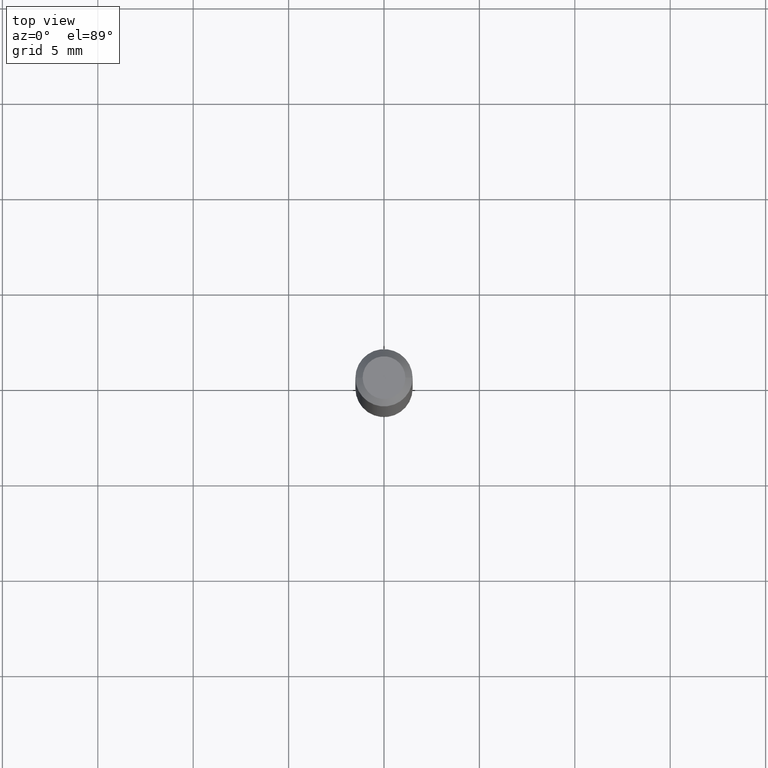
[diagram: clean part render]
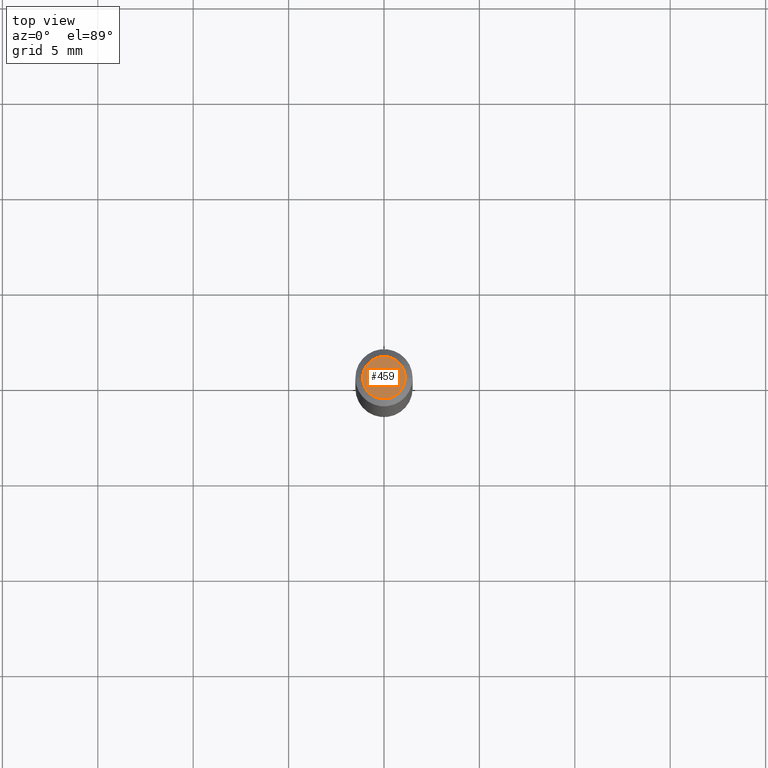
[diagram: same view with one face highlighted and labeled with its STEP entity id]
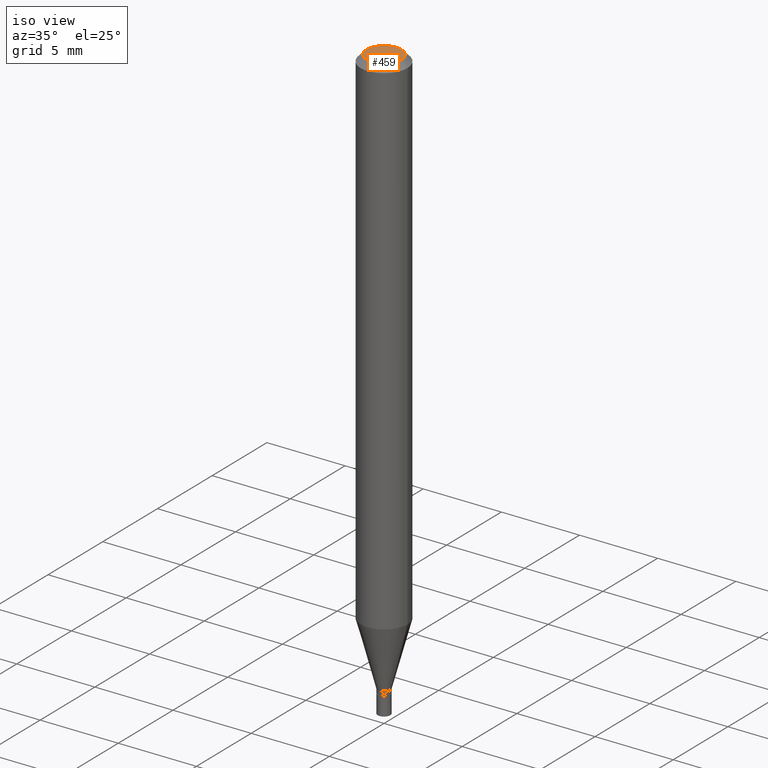
[diagram: same view with one face highlighted and labeled with its STEP entity id]
A machine part, top view. The second image highlights one B-rep face of the part: STEP entity #459.
A second angle (iso view) of the same face is appended — the face is thin or edge-on in the first view.
In plain terms, the highlighted planar face has unit normal (0, -0, -1).
Its self-contained STEP definition (entity closure, byte-faithful):
#3 = CIRCLE ( 'NONE', #287, 0.04404999999999999888 ) ;
#10 = EDGE_CURVE ( 'NONE', #236, #135, #3, .T. ) ;
#46 = CIRCLE ( 'NONE', #237, 0.04404999999999999888 ) ;
#56 = DIRECTION ( 'NONE',  ( 1.000000000000000000, -6.982962677686265922E-15, 4.888540261209747396E-29 ) ) ;
#80 = DIRECTION ( 'NONE',  ( -1.000000000000000000, 6.982962677686265922E-15, -4.876176775795935793E-29 ) ) ;
#109 = CARTESIAN_POINT ( 'NONE',  ( -0.04404999999999999888, 3.337856159934036604E-16, 1.092986812167893621E-16 ) ) ;
#115 = FACE_OUTER_BOUND ( 'NONE', #240, .T. ) ;
#129 = CARTESIAN_POINT ( 'NONE',  ( -2.672865154728371978E-45, 3.816143058285937292E-31, 1.092986812167916054E-16 ) ) ;
#135 = VERTEX_POINT ( 'NONE', #109 ) ;
#233 = ORIENTED_EDGE ( 'NONE', *, *, #273, .T. ) ;
#236 = VERTEX_POINT ( 'NONE', #293 ) ;
#237 = AXIS2_PLACEMENT_3D ( 'NONE', #129, #295, #406 ) ;
#240 = EDGE_LOOP ( 'NONE', ( #233, #352 ) ) ;
#251 = AXIS2_PLACEMENT_3D ( 'NONE', #400, #319, #80 ) ;
#273 = EDGE_CURVE ( 'NONE', #135, #236, #46, .T. ) ;
#287 = AXIS2_PLACEMENT_3D ( 'NONE', #343, #457, #56 ) ;
#293 = CARTESIAN_POINT ( 'NONE',  ( 0.04404999999999999888, -3.798447818264458600E-16, 1.092986812167939966E-16 ) ) ;
#295 = DIRECTION ( 'NONE',  ( -2.445468806185136597E-29, 3.491481338843145583E-15, 1.000000000000000000 ) ) ;
#319 = DIRECTION ( 'NONE',  ( 2.438088387897960049E-29, -3.491481338843145188E-15, -1.000000000000000000 ) ) ;
#343 = CARTESIAN_POINT ( 'NONE',  ( -2.672865154728371978E-45, 3.816143058285937292E-31, 1.092986812167916054E-16 ) ) ;
#352 = ORIENTED_EDGE ( 'NONE', *, *, #10, .T. ) ;
#400 = CARTESIAN_POINT ( 'NONE',  ( 3.075995059520799729E-16, 0.04404999999999999888, -9.915041236764475073E-17 ) ) ;
#406 = DIRECTION ( 'NONE',  ( 1.000000000000000000, -6.982962677686265922E-15, 4.888540261209747396E-29 ) ) ;
#440 = PLANE ( 'NONE',  #251 ) ;
#457 = DIRECTION ( 'NONE',  ( -2.445468806185136597E-29, 3.491481338843145583E-15, 1.000000000000000000 ) ) ;
#459 = ADVANCED_FACE ( 'NONE', ( #115 ), #440, .F. ) ;